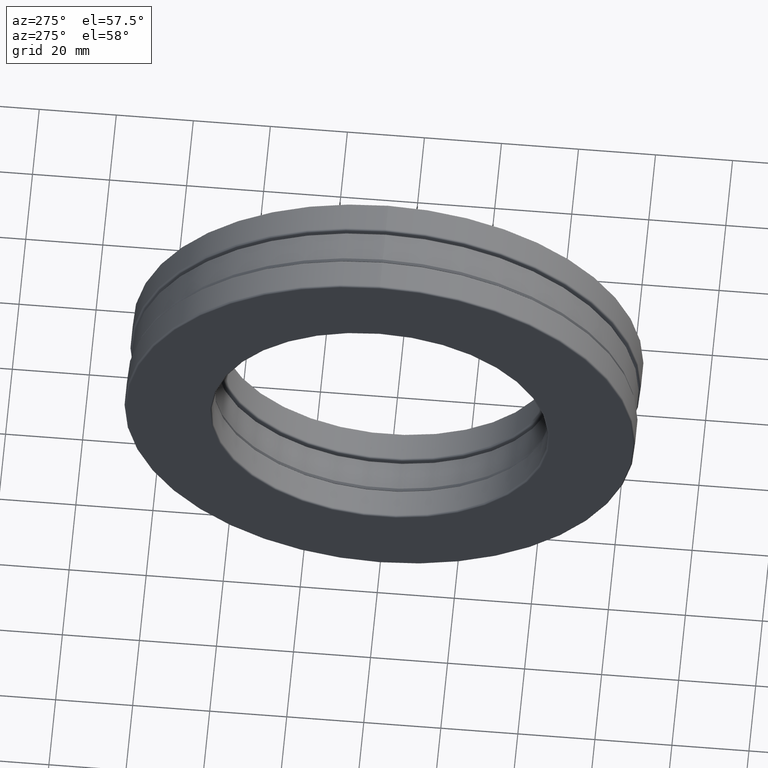
[diagram: clean part render]
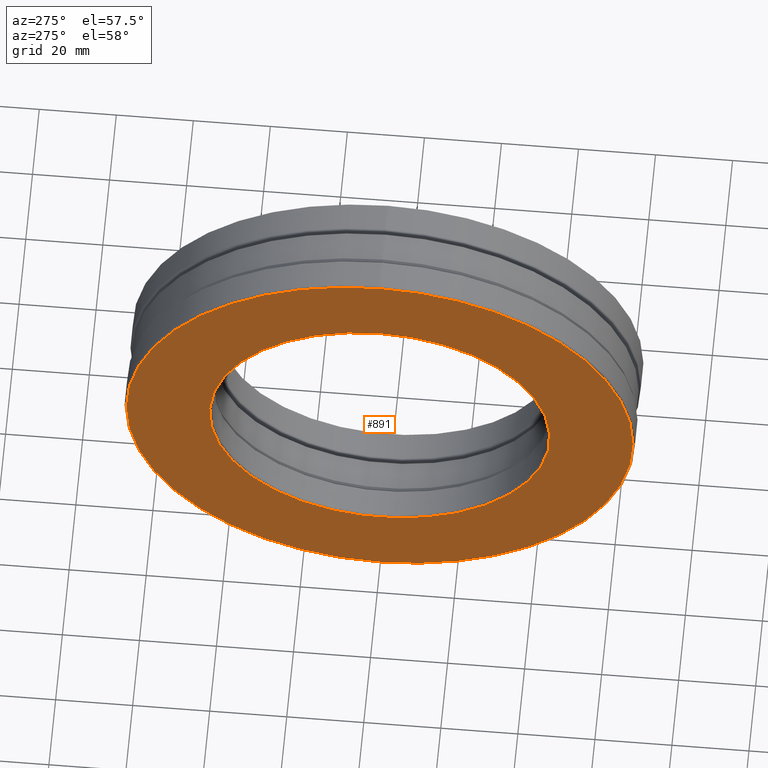
[diagram: same view with one face highlighted and labeled with its STEP entity id]
A machine part, auxiliary view. The second image highlights one B-rep face of the part: STEP entity #891.
In plain terms, the highlighted planar face has unit normal (1, 0, 0).
Its self-contained STEP definition (entity closure, byte-faithful):
#36 = EDGE_LOOP ( 'NONE', ( #1207 ) ) ;
#174 = DIRECTION ( 'NONE',  ( -1.000000000000000000, -0.0000000000000000000, -0.0000000000000000000 ) ) ;
#285 = PLANE ( 'NONE',  #353 ) ;
#313 = CARTESIAN_POINT ( 'NONE',  ( -0.5000000000000001100, 0.0000000000000000000, 2.589375000000000000 ) ) ;
#315 = CIRCLE ( 'NONE', #854, 1.738750000000000200 ) ;
#353 = AXIS2_PLACEMENT_3D ( 'NONE', #1195, #506, #1314 ) ;
#506 = DIRECTION ( 'NONE',  ( 1.000000000000000000, 0.0000000000000000000, 0.0000000000000000000 ) ) ;
#646 = EDGE_CURVE ( 'NONE', #814, #814, #315, .T. ) ;
#667 = DIRECTION ( 'NONE',  ( -1.000000000000000000, -0.0000000000000000000, -0.0000000000000000000 ) ) ;
#690 = VERTEX_POINT ( 'NONE', #313 ) ;
#698 = ORIENTED_EDGE ( 'NONE', *, *, #646, .F. ) ;
#704 = EDGE_CURVE ( 'NONE', #690, #690, #817, .T. ) ;
#746 = EDGE_LOOP ( 'NONE', ( #698 ) ) ;
#759 = DIRECTION ( 'NONE',  ( 0.0000000000000000000, 0.0000000000000000000, 1.000000000000000000 ) ) ;
#814 = VERTEX_POINT ( 'NONE', #1132 ) ;
#817 = CIRCLE ( 'NONE', #1430, 2.589375000000000000 ) ;
#854 = AXIS2_PLACEMENT_3D ( 'NONE', #1001, #174, #759 ) ;
#891 = ADVANCED_FACE ( 'NONE', ( #1052, #1342 ), #285, .F. ) ;
#1001 = CARTESIAN_POINT ( 'NONE',  ( -0.5000000000000000000, 0.0000000000000000000, 0.0000000000000000000 ) ) ;
#1052 = FACE_BOUND ( 'NONE', #746, .T. ) ;
#1132 = CARTESIAN_POINT ( 'NONE',  ( -0.5000000000000000000, 0.0000000000000000000, 1.738750000000000200 ) ) ;
#1195 = CARTESIAN_POINT ( 'NONE',  ( -0.5000000000000001100, -8.028943405332145300E-017, 0.0000000000000000000 ) ) ;
#1207 = ORIENTED_EDGE ( 'NONE', *, *, #704, .T. ) ;
#1254 = DIRECTION ( 'NONE',  ( 0.0000000000000000000, 0.0000000000000000000, 1.000000000000000000 ) ) ;
#1314 = DIRECTION ( 'NONE',  ( 0.0000000000000000000, 0.0000000000000000000, -1.000000000000000000 ) ) ;
#1342 = FACE_OUTER_BOUND ( 'NONE', #36, .T. ) ;
#1430 = AXIS2_PLACEMENT_3D ( 'NONE', #1443, #667, #1254 ) ;
#1443 = CARTESIAN_POINT ( 'NONE',  ( -0.5000000000000001100, 0.0000000000000000000, 0.0000000000000000000 ) ) ;